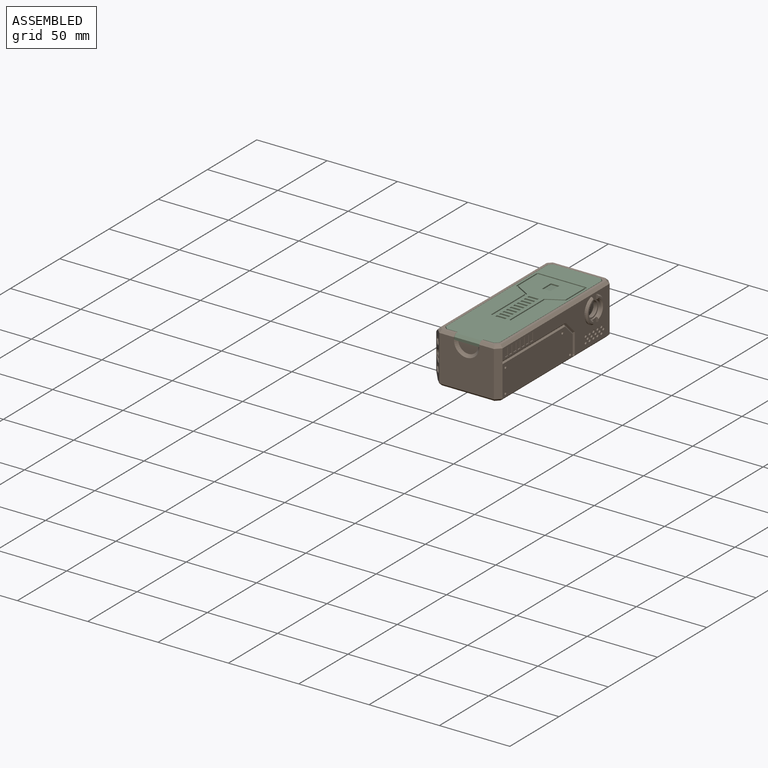
[diagram: assembled view]
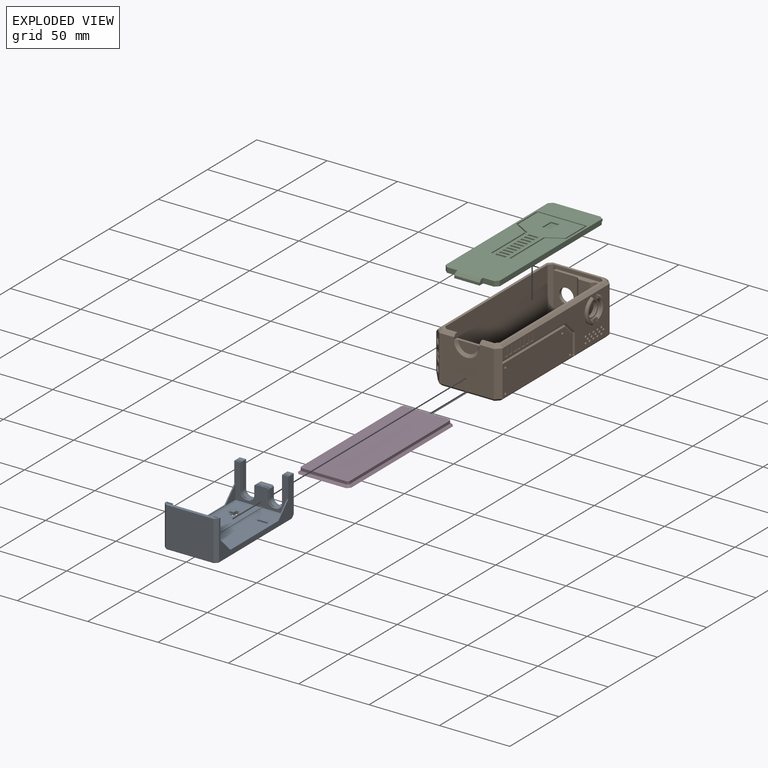
[diagram: exploded view]
GUIDED TOUR — MATED ASSEMBLY (Onshape document 57d64d65164b3f10c1694806, AutoMate assembly 57d64d65164b3f10c1694806_f995a6d2c06ce3dc14281dad_86aa35de4c8ce08f4fe0537d_default)

This assembly has 4 components, labeled P0..P3 below (a component is one placed occurrence of a part; the same part can appear more than once), held together by 3 mates. A mate is a constraint between two components; its type names the relative motion it leaves free:
  FASTENED — locks the two components together rigidly (no relative motion).
Axis/direction vectors are unit vectors and 'through' points are millimeter coordinates, both in the assembly's world frame.

MATES
  1. FASTENED "Fastened 1": P2 <-> P1, direction (0.000, 0.000, -1.000) through (-46.46, 43.61, 37.74) mm
  2. FASTENED "Fastened 2": P3 <-> P1, direction (0.000, 1.000, 0.000) through (-46.46, 39.76, 6.89) mm
  3. FASTENED "Fastened 3": P0 <-> P1, direction (0.000, -1.000, 0.000) through (-46.46, -66.64, 8.89) mm

ASSEMBLY ORDER
  1. P1 — the base component [order heuristic]
  2. P3 — core [order heuristic]
  3. P0 [order verified]
  4. P2 [order verified]
Order-tag legend:
  [order verified] — this step's position reverses a verified removal order: the component was checked to insert without passing through the ones already placed.
  [order heuristic] — the first 2 components form the assembly's core: parts whose collision-free extraction could not be verified, listed in mate-graph order.

Of the 4 components, 1 carries the full construction recipe — the FeatureScript program that regenerates the part's solid from scratch; the rest are supplied as boundary geometry only.
Each toured component is shown spotlighted twice — in the assembled view, then in the exploded view, where a leader line traces a displaced component back to its assembled socket (saturated green if recipe-attached, orange if geometry-only; every other component desaturated gray) — followed by its recipe or geometry summary and the mates that hold it.
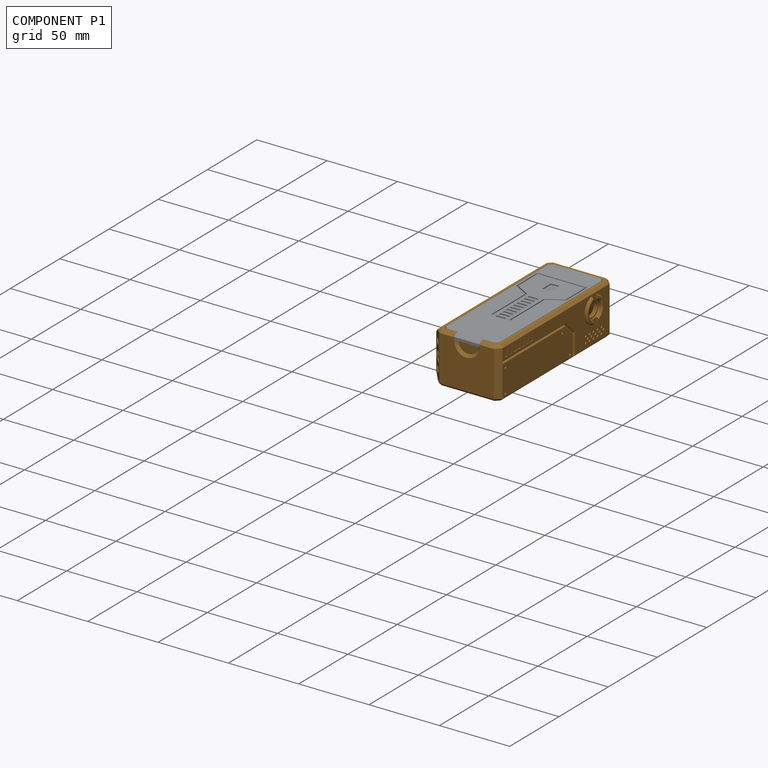
[diagram: component P1 — assembled]
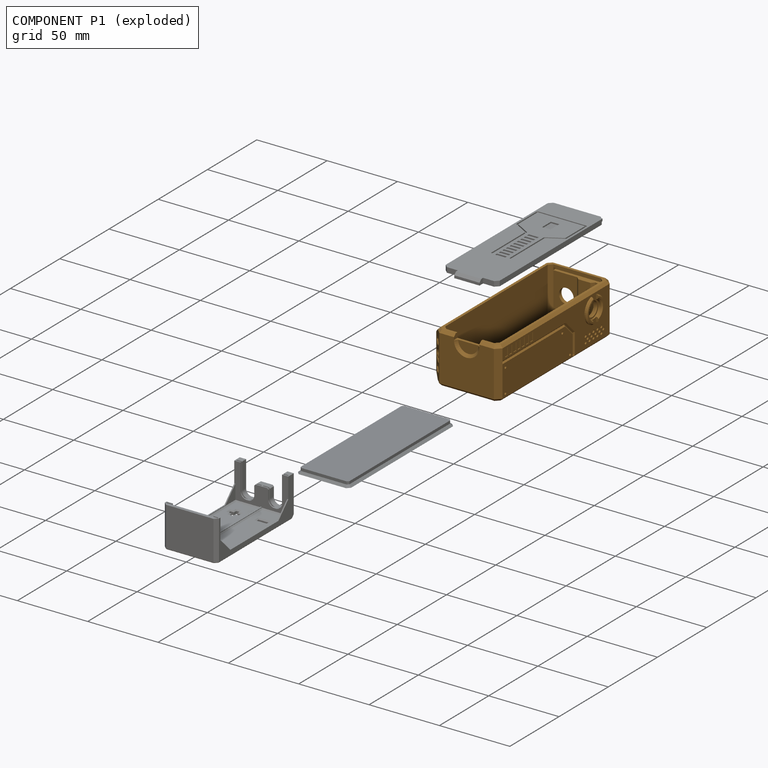
[diagram: component P1 — exploded]
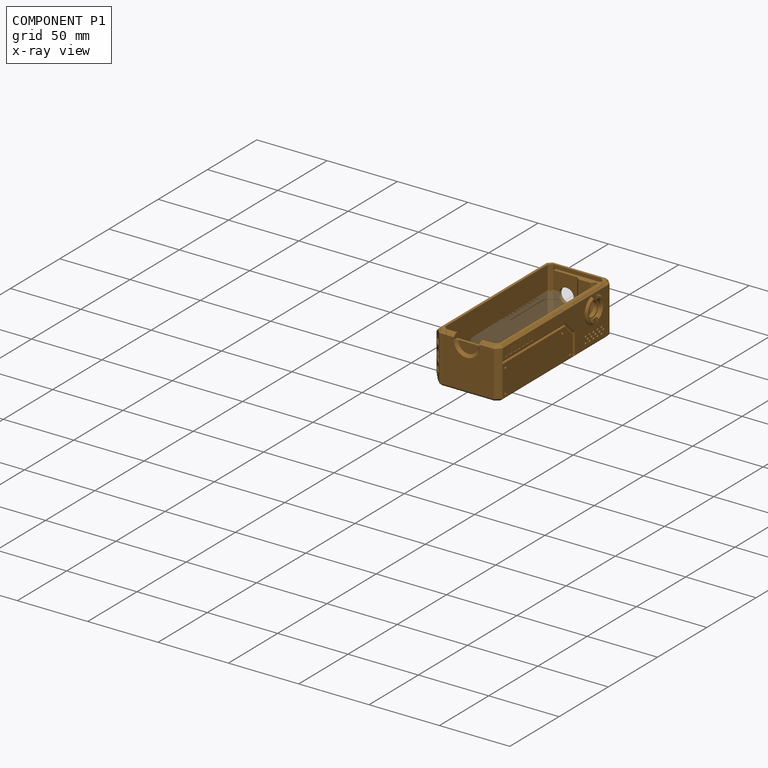
[diagram: component P1 — x-ray view]
COMPONENT P1 — geometry summary (no construction recipe available for this part):
  bounding box: 116.2 x 51.6 x 36.2 mm
  B-rep topology: 1 solid, 395 faces, 1838 edges
  volume: 46922 mm^3 (22% of its bounding box)
Held by: FASTENED mate "Fastened 1" to P2; FASTENED mate "Fastened 2" to P3; FASTENED mate "Fastened 3" to P0.
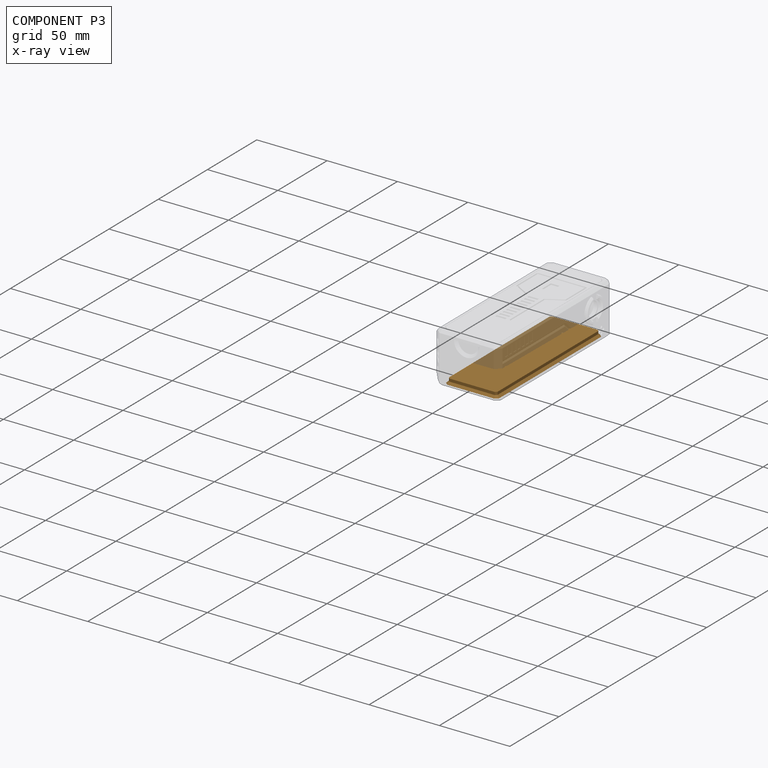
[diagram: component P3 — x-ray view]
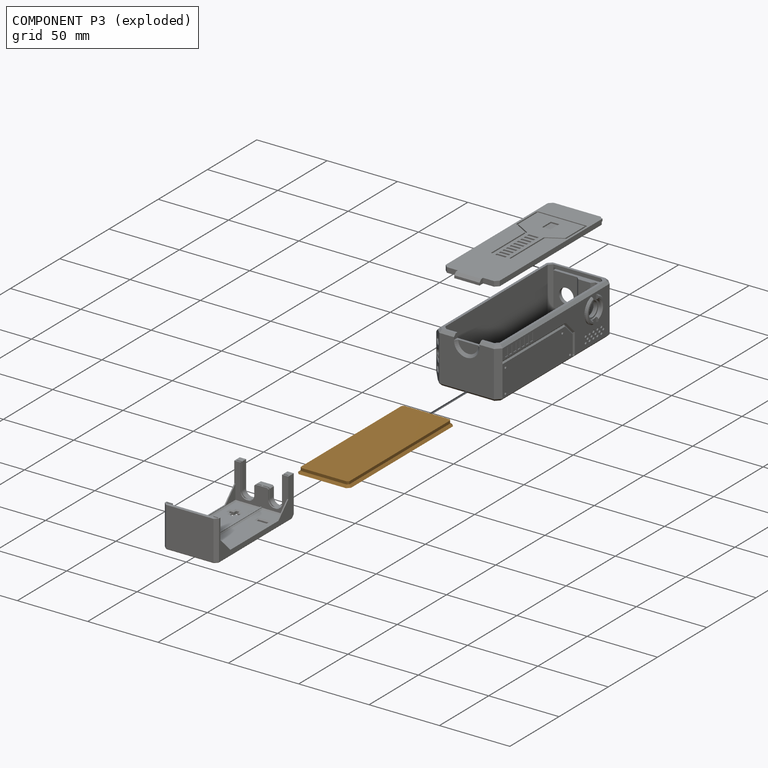
[diagram: component P3 — exploded]
COMPONENT P3 — geometry summary (no construction recipe available for this part):
  bounding box: 107.8 x 37.8 x 3.6 mm
  B-rep topology: 1 solid, 18 faces, 80 edges
  volume: 13377 mm^3 (91% of its bounding box)
  symmetry: 2-fold rotationally symmetric about the z axis; mirror-symmetric across its x mid-plane, y mid-plane
Held by: FASTENED mate "Fastened 2" to P1.
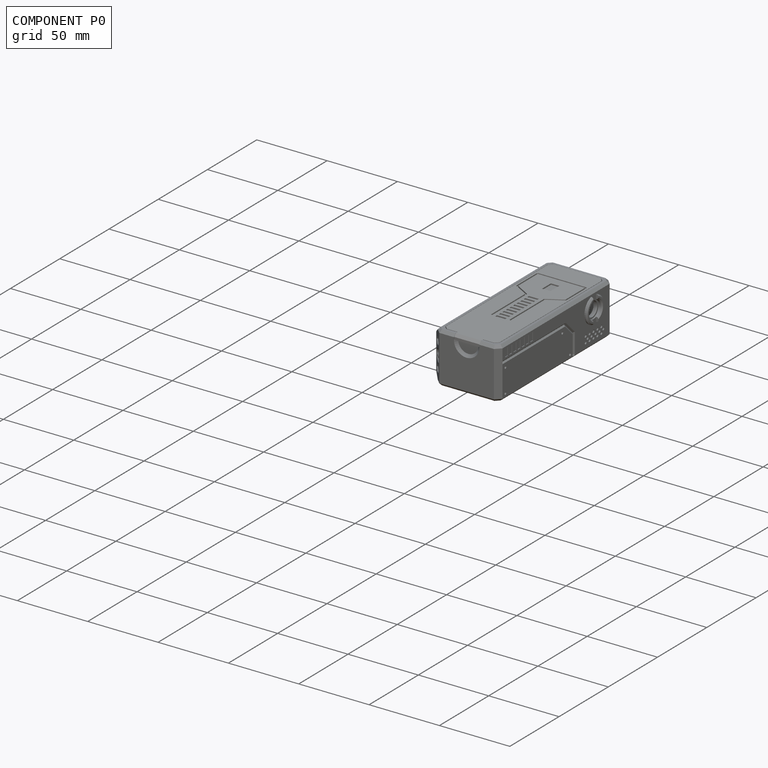
[diagram: component P0 — assembled]
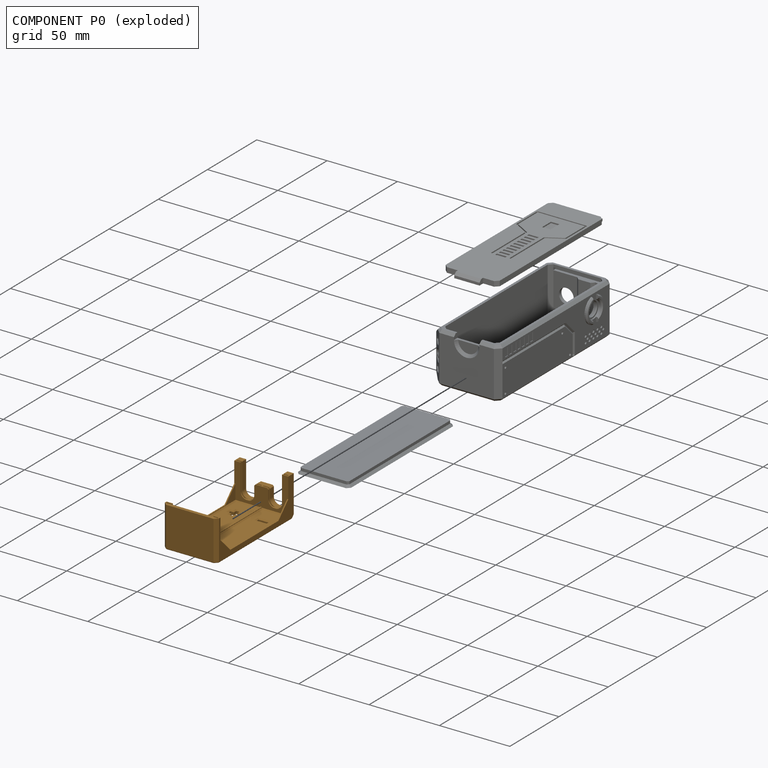
[diagram: component P0 — exploded]
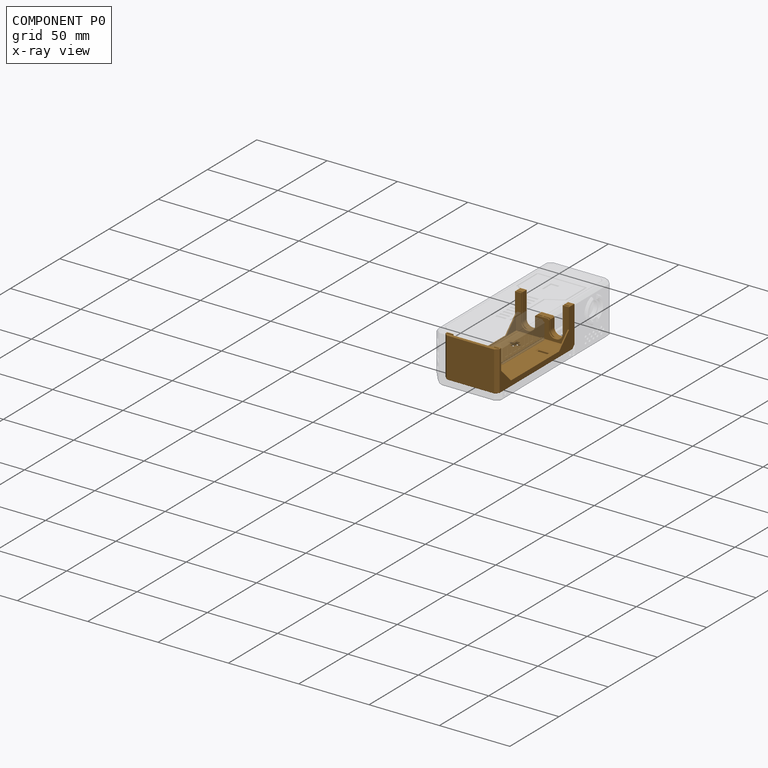
[diagram: component P0 — x-ray view]
COMPONENT P0 — geometry summary (no construction recipe available for this part):
  bounding box: 78.3 x 38.4 x 28.6 mm
  B-rep topology: 1 solid, 186 faces, 1022 edges
  volume: 13199 mm^3 (15% of its bounding box)
Held by: FASTENED mate "Fastened 3" to P1.
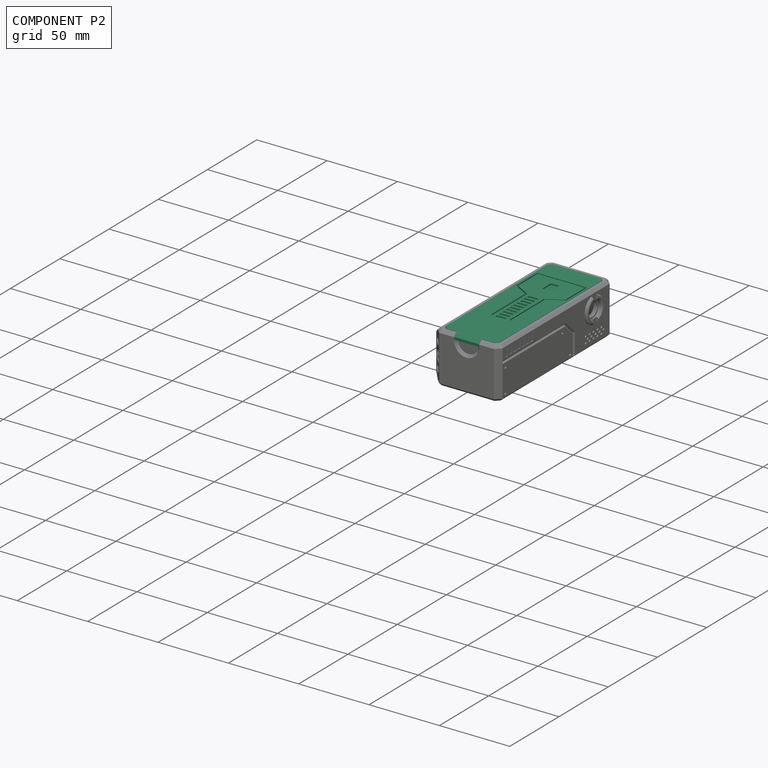
[diagram: component P2 — assembled]
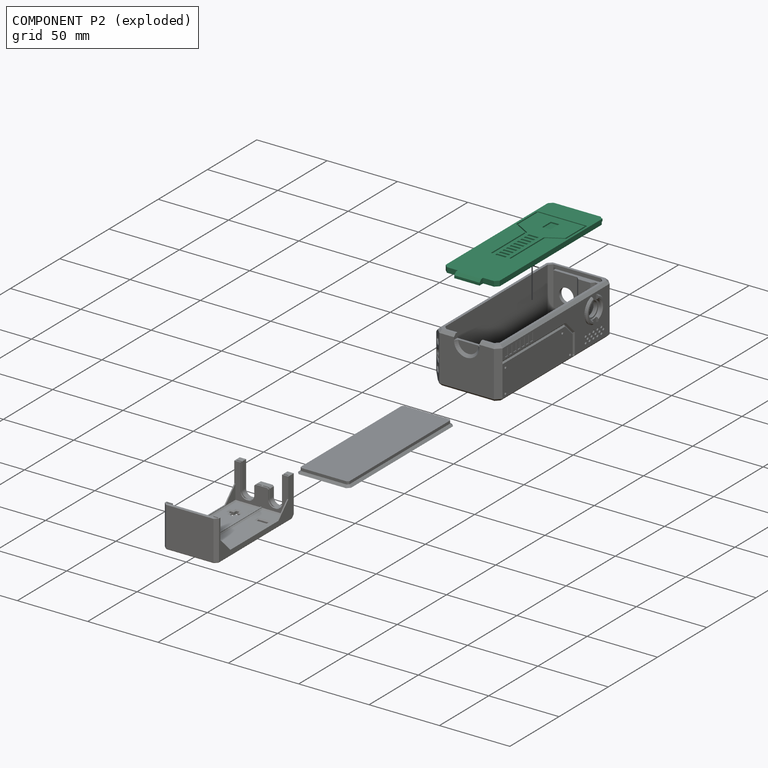
[diagram: component P2 — exploded]
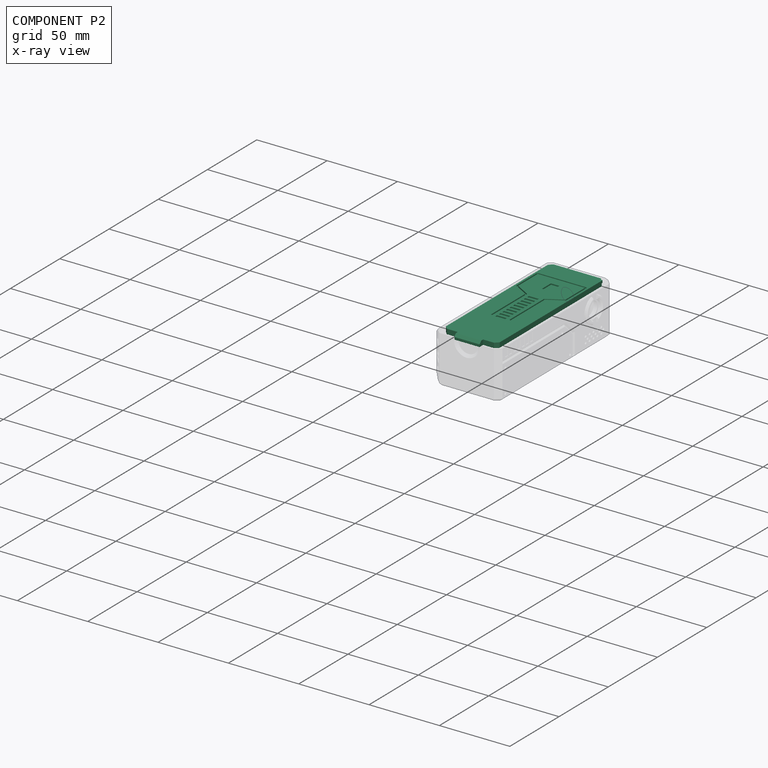
[diagram: component P2 — x-ray view]
COMPONENT P2 — recipe-attached (CADFS 00241045, mesh-verified: the recipe's output STEP matches this component's geometry to below the mesh-comparison resolution (tessellation chordal tolerance ~0.18 mm)).
Held by: FASTENED mate "Fastened 1" to P1.
Construction recipe (FeatureScript — the CAD program that rebuilds this solid; sketch coordinates are in the units given by the * unit suffixes, e.g. mm):

FeatureScript 1540;
import(path : "onshape/std/geometry.fs", version : "1540.0");
import(path : "onshape/std/common.fs", version : "1540.0");
const mm = millimeter;
const VERTEX = EntityType.VERTEX;
const EDGE = EntityType.EDGE;
const FACE = EntityType.FACE;
const BODY = EntityType.BODY;
function v(x, y){return vector(x, y);}
function OD(order){return orderDisambiguation(order);}
function OSD(set){return originalSetDisambiguation(set);}
function TD(topology){return topologyDisambiguation(topology);}
function TDD(query){return trueDependencyDisambiguation(query);}
function sQuery(a, b, c) {return sketchEntityQuery(a, b, c);}

annotation { "Feature Type Name" : "Feature", "Feature Type Description" : "" }
export const myFeature = defineFeature(function(context is Context, id is Id, definition is map)
    precondition{}
    {
        {
            assignVariable(context, id + "F0", {"name" : "O", "anyValue" : 3.6});
        }
        {
            var Q0;
            Q0=qCreatedBy(makeId("Top.planeOp"),FACE);
            var sketch = newSketch(context, id + "F1", { "sketchPlane" : qUnion([Q0])});
            skLineSegment(sketch, "E0.bottom", {"start": v(19.17, 54.18) * mm, "end": v(-19.18, 54.18) * mm});
            skLineSegment(sketch, "E0.top", {"start": v(19.18, -54.18) * mm, "end": v(-19.17, -54.18) * mm});
            skLineSegment(sketch, "E0.left", {"start": v(19.17, 54.18) * mm, "end": v(19.18, -54.18) * mm});
            skLineSegment(sketch, "E0.right", {"start": v(-19.18, 54.18) * mm, "end": v(-19.17, -54.18) * mm});
            skPoint(sketch, "E0.middle", {"position": v(0, 0) * mm});
            skSolve(sketch);
        }
        {
            var Q0;
            Q0=makeQuery(id+"F1.imprint","IMPRINT",FACE,{"disambiguationData":[TD([[makeQuery(id+"F1.imprint","IMPRINT",EDGE,{"derivedFrom":sQuery(id+"F1.wireOp",EDGE,"E0.bottom")}),1.0]])]});
            extrude(context, id + "F2", {"entities" : qUnion([Q0]), "depth" : (getVariable(context, 'O')) * mm});
        }
        {
            var Q0;
            Q0=makeQuery(id+"F2.opExtrude","SWEPT_EDGE",EDGE,{"disambiguationData":[OSD([sQuery(id+"F1.wireOp",EDGE,"E0.top"),sQuery(id+"F1.wireOp",EDGE,"E0.left")])]});
            var Q1;
            Q1=makeQuery(id+"F2.opExtrude","SWEPT_EDGE",EDGE,{"disambiguationData":[OSD([sQuery(id+"F1.wireOp",EDGE,"E0.top"),sQuery(id+"F1.wireOp",EDGE,"E0.right")])]});
            var Q2;
            Q2=makeQuery(id+"F2.opExtrude","SWEPT_EDGE",EDGE,{"disambiguationData":[OSD([sQuery(id+"F1.wireOp",EDGE,"E0.bottom"),sQuery(id+"F1.wireOp",EDGE,"E0.right")])]});
            var Q3;
            Q3=makeQuery(id+"F2.opExtrude","SWEPT_EDGE",EDGE,{"disambiguationData":[OSD([sQuery(id+"F1.wireOp",EDGE,"E0.bottom"),sQuery(id+"F1.wireOp",EDGE,"E0.left")])]});
            chamfer(context, id + "F3", {"entities" : qUnion([Q0, Q1, Q2, Q3]), "width" : (getVariable(context, 'O') * 0.67) * mm, "tangentPropagation" : true});
        }
        {
            var Q0;
            Q0=makeQuery(id+"F2.opExtrude","SWEPT_FACE",FACE,{"disambiguationData":[OSD([sQuery(id+"F1.wireOp",EDGE,"E0.bottom")])]});
            var sketch = newSketch(context, id + "F4", { "sketchPlane" : qUnion([Q0])});
            skLineSegment(sketch, "E1", {"start": v(-16.78, 1.8) * mm, "end": v(16.78, 1.8) * mm});
            skSolve(sketch);
        }
        {
            var Q0;
            {var subQ0=sQuery(id+"F4.wireOp",EDGE,"E1");Q0=makeQuery(id+"F4.imprint","IMPRINT",FACE,{"disambiguationData":[TD([[makeQuery(id+"F4.imprint","IMPRINT",EDGE,{"derivedFrom":subQ0}),-1.0]])]});}
            extrude(context, id + "F5", {"entities" : qUnion([Q0]), "operationType" : NewBodyOperationType.ADD, "depth" : (getVariable(context, 'O') / 2) * mm});
        }
        {
            var Q0;
            Q0=makeQuery(id+"F5.opExtrude","CAP_EDGE",EDGE,{"disambiguationData":[OSD([sQuery(id+"F4.wireOp",EDGE,"E1")])],"isStart":false});
            fillet(context, id + "F6", {"entities" : qUnion([Q0]), "radius" : .25 * mm, "tangentPropagation" : true, "allowEdgeOverflow" : false});
        }
        {
            var Q0;
            Q0=makeQuery(id+"F2.opExtrude","SWEPT_FACE",FACE,{"disambiguationData":[OSD([sQuery(id+"F1.wireOp",EDGE,"E0.top")])]});
            var sketch = newSketch(context, id + "F7", { "sketchPlane" : qUnion([Q0])});
            skLineSegment(sketch, "E2.bottom", {"start": v(9, 0) * mm, "end": v(-9, 0) * mm});
            skLineSegment(sketch, "E2.top", {"start": v(9, 3.6) * mm, "end": v(-9, 3.6) * mm});
            skLineSegment(sketch, "E2.left", {"start": v(9, 0) * mm, "end": v(9, 3.6) * mm});
            skLineSegment(sketch, "E2.right", {"start": v(-9, 0) * mm, "end": v(-9, 3.6) * mm});
            skPoint(sketch, "E2.middle", {"position": v(0, 1.8) * mm});
            skPoint(sketch, "E2.middle.positionSnap0", {"position": v(-16.78, 1.8) * mm});
            skPoint(sketch, "E2.centerSnap0", {"position": v(-16.78, 1.8) * mm});
            skSolve(sketch);
        }
        {
            var Q0;
            Q0=makeQuery(id+"F7.imprint","IMPRINT",FACE,{"disambiguationData":[TD([[makeQuery(id+"F7.imprint","IMPRINT",EDGE,{"derivedFrom":sQuery(id+"F7.wireOp",EDGE,"E2.bottom")}),-1.0]])]});
            extrude(context, id + "F8", {"entities" : qUnion([Q0]), "operationType" : NewBodyOperationType.ADD, "depth" : (getVariable(context, 'O')) * mm});
        }
        {
            var Q0;
            Q0=makeQuery(id+"F8.opExtrude","CAP_EDGE",EDGE,{"disambiguationData":[OSD([sQuery(id+"F7.wireOp",EDGE,"E2.top")])],"isStart":false});
            chamfer(context, id + "F9", {"entities" : qUnion([Q0]), "width" : (getVariable(context, 'O') / 2) * mm, "tangentPropagation" : true});
        }
        {
            var Q0;
            Q0=makeQuery(id+"F8.boolean.opBoolean","MERGE",FACE,{"derivedFrom":[makeQuery(id+"F2.opExtrude","CAP_FACE",FACE,{"disambiguationData":[OSD([sQuery(id+"F1.wireOp",EDGE,"E0.bottom"),sQuery(id+"F1.wireOp",EDGE,"E0.top"),sQuery(id+"F1.wireOp",EDGE,"E0.left"),sQuery(id+"F1.wireOp",EDGE,"E0.right")])],"isStart":false}),makeQuery(id+"F8.opExtrude","SWEPT_FACE",FACE,{"disambiguationData":[OSD([sQuery(id+"F7.wireOp",EDGE,"E2.top")])]})]});
            var sketch = newSketch(context, id + "F10", { "sketchPlane" : qUnion([Q0])});
            skLineSegment(sketch, "E3", {"start": v(-16.78, 38.17) * mm, "end": v(16.78, 38.18) * mm});
            skLineSegment(sketch, "E4", {"start": v(16.78, 38.18) * mm, "end": v(16.78, 18.18) * mm});
            skLineSegment(sketch, "E5", {"start": v(16.78, 18.18) * mm, "end": v(6, 11.95) * mm});
            skLineSegment(sketch, "E6", {"start": v(6, 11.95) * mm, "end": v(6, -23.05) * mm});
            skLineSegment(sketch, "E7", {"start": v(6, -23.05) * mm, "end": v(19.18, -30.65) * mm});
            skLineSegment(sketch, "E8", {"start": v(-16.78, 38.17) * mm, "end": v(-16.78, 18.18) * mm});
            skLineSegment(sketch, "E9", {"start": v(-16.78, 18.18) * mm, "end": v(-6, 11.95) * mm});
            skLineSegment(sketch, "E10", {"start": v(-6, 11.95) * mm, "end": v(-6, -23.05) * mm});
            skLineSegment(sketch, "E11", {"start": v(-6, -23.05) * mm, "end": v(-19.17, -30.65) * mm});
            skArc(sketch, "E12.0.startCap", {"start": v(-7, 11.95) * mm, "mid": v(-6, 12.95) * mm, "end": v(-5, 11.95) * mm});
            skArc(sketch, "E12.0.endCap", {"start": v(-5, -23.05) * mm, "mid": v(-6, -24.05) * mm, "end": v(-7, -23.05) * mm});
            skLineSegment(sketch, "E12.0.left", {"start": v(-5, 11.95) * mm, "end": v(-5, -23.05) * mm});
            skLineSegment(sketch, "E12.0.right", {"start": v(-7, 11.95) * mm, "end": v(-7, -23.05) * mm});
            skArc(sketch, "E12.1.startCap", {"start": v(-17.28, 17.3) * mm, "mid": v(-17.64, 18.68) * mm, "end": v(-16.28, 19.04) * mm});
            skArc(sketch, "E12.1.endCap", {"start": v(-5.5, 12.82) * mm, "mid": v(-5.13, 11.45) * mm, "end": v(-6.5, 11.09) * mm});
            skLineSegment(sketch, "E12.1.left", {"start": v(-16.28, 19.04) * mm, "end": v(-5.5, 12.82) * mm});
            skLineSegment(sketch, "E12.1.right", {"start": v(-17.28, 17.3) * mm, "end": v(-6.5, 11.09) * mm});
            skArc(sketch, "E12.2.startCap", {"start": v(-17.78, 38.17) * mm, "mid": v(-16.78, 39.18) * mm, "end": v(-15.78, 38.17) * mm});
            skArc(sketch, "E12.2.endCap", {"start": v(-15.78, 18.18) * mm, "mid": v(-16.78, 17.18) * mm, "end": v(-17.78, 18.18) * mm});
            skLineSegment(sketch, "E12.2.left", {"start": v(-15.78, 38.17) * mm, "end": v(-15.78, 18.18) * mm});
            skLineSegment(sketch, "E12.2.right", {"start": v(-17.78, 38.17) * mm, "end": v(-17.78, 18.18) * mm});
            skArc(sketch, "E12.3.startCap", {"start": v(-16.78, 37.17) * mm, "mid": v(-17.78, 38.17) * mm, "end": v(-16.78, 39.18) * mm});
            skArc(sketch, "E12.3.endCap", {"start": v(16.78, 39.18) * mm, "mid": v(17.78, 38.18) * mm, "end": v(16.78, 37.18) * mm});
            skLineSegment(sketch, "E12.3.left", {"start": v(-16.78, 39.18) * mm, "end": v(16.78, 39.18) * mm});
            skLineSegment(sketch, "E12.3.right", {"start": v(-16.78, 37.17) * mm, "end": v(16.78, 37.18) * mm});
            skArc(sketch, "E12.4.startCap", {"start": v(15.78, 38.18) * mm, "mid": v(16.78, 39.18) * mm, "end": v(17.78, 38.18) * mm});
            skArc(sketch, "E12.4.endCap", {"start": v(17.78, 18.18) * mm, "mid": v(16.78, 17.18) * mm, "end": v(15.78, 18.18) * mm});
            skLineSegment(sketch, "E12.4.left", {"start": v(17.78, 38.18) * mm, "end": v(17.78, 18.18) * mm});
            skLineSegment(sketch, "E12.4.right", {"start": v(15.78, 38.18) * mm, "end": v(15.78, 18.18) * mm});
            skArc(sketch, "E12.5.startCap", {"start": v(16.28, 19.04) * mm, "mid": v(17.64, 18.68) * mm, "end": v(17.28, 17.3) * mm});
            skArc(sketch, "E12.5.endCap", {"start": v(6.5, 11.09) * mm, "mid": v(5.13, 11.45) * mm, "end": v(5.5, 12.82) * mm});
            skLineSegment(sketch, "E12.5.left", {"start": v(17.28, 17.3) * mm, "end": v(6.5, 11.09) * mm});
            skLineSegment(sketch, "E12.5.right", {"start": v(16.28, 19.04) * mm, "end": v(5.5, 12.82) * mm});
            skArc(sketch, "E12.6.startCap", {"start": v(5, 11.95) * mm, "mid": v(6, 12.95) * mm, "end": v(7, 11.95) * mm});
            skArc(sketch, "E12.6.endCap", {"start": v(7, -23.05) * mm, "mid": v(6, -24.05) * mm, "end": v(5, -23.05) * mm});
            skLineSegment(sketch, "E12.6.left", {"start": v(7, 11.95) * mm, "end": v(7, -23.05) * mm});
            skLineSegment(sketch, "E12.6.right", {"start": v(5, 11.95) * mm, "end": v(5, -23.05) * mm});
            skArc(sketch, "E13.0.startCap", {"start": v(-6.5, -22.18) * mm, "mid": v(-5.13, -22.55) * mm, "end": v(-5.5, -23.91) * mm});
            skArc(sketch, "E13.0.endCap", {"start": v(-18.67, -31.52) * mm, "mid": v(-20.04, -31.15) * mm, "end": v(-19.67, -29.79) * mm});
            skLineSegment(sketch, "E13.0.left", {"start": v(-5.5, -23.91) * mm, "end": v(-18.67, -31.52) * mm});
            skLineSegment(sketch, "E13.0.right", {"start": v(-6.5, -22.18) * mm, "end": v(-19.67, -29.79) * mm});
            skArc(sketch, "E13.1.startCap", {"start": v(5.5, -23.91) * mm, "mid": v(5.13, -22.55) * mm, "end": v(6.5, -22.18) * mm});
            skArc(sketch, "E13.1.endCap", {"start": v(19.67, -29.79) * mm, "mid": v(20.04, -31.15) * mm, "end": v(18.67, -31.52) * mm});
            skLineSegment(sketch, "E13.1.left", {"start": v(6.5, -22.18) * mm, "end": v(19.67, -29.79) * mm});
            skLineSegment(sketch, "E13.1.right", {"start": v(5.5, -23.91) * mm, "end": v(18.68, -31.52) * mm});
            skLineSegment(sketch, "E14.bottom", {"start": v(3, 22.83) * mm, "end": v(-3, 22.83) * mm});
            skLineSegment(sketch, "E14.top", {"start": v(3, 31.83) * mm, "end": v(-3, 31.83) * mm});
            skLineSegment(sketch, "E14.left", {"start": v(3, 22.83) * mm, "end": v(3, 31.83) * mm});
            skLineSegment(sketch, "E14.right", {"start": v(-3, 22.83) * mm, "end": v(-3, 31.83) * mm});
            skPoint(sketch, "E14.middle", {"position": v(0, 27.33) * mm});
            skLineSegment(sketch, "E15.bottom", {"start": v(3.5, -23.95) * mm, "end": v(-3.5, -23.95) * mm});
            skLineSegment(sketch, "E15.top", {"start": v(3.5, -22.15) * mm, "end": v(-3.5, -22.15) * mm});
            skLineSegment(sketch, "E15.left", {"start": v(3.5, -23.95) * mm, "end": v(3.5, -22.15) * mm});
            skLineSegment(sketch, "E15.right", {"start": v(-3.5, -23.95) * mm, "end": v(-3.5, -22.15) * mm});
            skPoint(sketch, "E15.middle", {"position": v(0, -23.05) * mm});
            skLineSegment(sketch, "E16.0.1.0", {"start": v(3.5, -18.55) * mm, "end": v(-3.5, -18.55) * mm});
            skLineSegment(sketch, "E16.0.1.1", {"start": v(-3.5, -20.35) * mm, "end": v(-3.5, -18.55) * mm});
            skLineSegment(sketch, "E16.0.1.2", {"start": v(3.5, -20.35) * mm, "end": v(-3.5, -20.35) * mm});
            skLineSegment(sketch, "E16.0.1.3", {"start": v(3.5, -20.35) * mm, "end": v(3.5, -18.55) * mm});
            skLineSegment(sketch, "E16.0.2.0", {"start": v(3.5, -14.95) * mm, "end": v(-3.5, -14.95) * mm});
            skLineSegment(sketch, "E16.0.2.1", {"start": v(-3.5, -16.75) * mm, "end": v(-3.5, -14.95) * mm});
            skLineSegment(sketch, "E16.0.2.2", {"start": v(3.5, -16.75) * mm, "end": v(-3.5, -16.75) * mm});
            skLineSegment(sketch, "E16.0.2.3", {"start": v(3.5, -16.75) * mm, "end": v(3.5, -14.95) * mm});
            skLineSegment(sketch, "E16.0.3.0", {"start": v(3.5, -11.35) * mm, "end": v(-3.5, -11.35) * mm});
            skLineSegment(sketch, "E16.0.3.1", {"start": v(-3.5, -13.15) * mm, "end": v(-3.5, -11.35) * mm});
            skLineSegment(sketch, "E16.0.3.2", {"start": v(3.5, -13.15) * mm, "end": v(-3.5, -13.15) * mm});
            skLineSegment(sketch, "E16.0.3.3", {"start": v(3.5, -13.15) * mm, "end": v(3.5, -11.35) * mm});
            skLineSegment(sketch, "E16.0.4.0", {"start": v(3.5, -7.75) * mm, "end": v(-3.5, -7.75) * mm});
            skLineSegment(sketch, "E16.0.4.1", {"start": v(-3.5, -9.55) * mm, "end": v(-3.5, -7.75) * mm});
            skLineSegment(sketch, "E16.0.4.2", {"start": v(3.5, -9.55) * mm, "end": v(-3.5, -9.55) * mm});
            skLineSegment(sketch, "E16.0.4.3", {"start": v(3.5, -9.55) * mm, "end": v(3.5, -7.75) * mm});
            skLineSegment(sketch, "E16.0.5.0", {"start": v(3.5, -4.15) * mm, "end": v(-3.5, -4.15) * mm});
            skLineSegment(sketch, "E16.0.5.1", {"start": v(-3.5, -5.95) * mm, "end": v(-3.5, -4.15) * mm});
            skLineSegment(sketch, "E16.0.5.2", {"start": v(3.5, -5.95) * mm, "end": v(-3.5, -5.95) * mm});
            skLineSegment(sketch, "E16.0.5.3", {"start": v(3.5, -5.95) * mm, "end": v(3.5, -4.15) * mm});
            skLineSegment(sketch, "E16.0.6.0", {"start": v(3.5, -0.55) * mm, "end": v(-3.5, -0.55) * mm});
            skLineSegment(sketch, "E16.0.6.1", {"start": v(-3.5, -2.35) * mm, "end": v(-3.5, -0.55) * mm});
            skLineSegment(sketch, "E16.0.6.2", {"start": v(3.5, -2.35) * mm, "end": v(-3.5, -2.35) * mm});
            skLineSegment(sketch, "E16.0.6.3", {"start": v(3.5, -2.35) * mm, "end": v(3.5, -0.55) * mm});
            skLineSegment(sketch, "E16.0.7.0", {"start": v(3.5, 3.05) * mm, "end": v(-3.5, 3.05) * mm});
            skLineSegment(sketch, "E16.0.7.1", {"start": v(-3.5, 1.25) * mm, "end": v(-3.5, 3.05) * mm});
            skLineSegment(sketch, "E16.0.7.2", {"start": v(3.5, 1.25) * mm, "end": v(-3.5, 1.25) * mm});
            skLineSegment(sketch, "E16.0.7.3", {"start": v(3.5, 1.25) * mm, "end": v(3.5, 3.05) * mm});
            skLineSegment(sketch, "E16.0.8.0", {"start": v(3.5, 6.65) * mm, "end": v(-3.5, 6.65) * mm});
            skLineSegment(sketch, "E16.0.8.1", {"start": v(-3.5, 4.85) * mm, "end": v(-3.5, 6.65) * mm});
            skLineSegment(sketch, "E16.0.8.2", {"start": v(3.5, 4.85) * mm, "end": v(-3.5, 4.85) * mm});
            skLineSegment(sketch, "E16.0.8.3", {"start": v(3.5, 4.85) * mm, "end": v(3.5, 6.65) * mm});
            skLineSegment(sketch, "E16.0.9.0", {"start": v(3.5, 10.25) * mm, "end": v(-3.5, 10.25) * mm});
            skLineSegment(sketch, "E16.0.9.1", {"start": v(-3.5, 8.45) * mm, "end": v(-3.5, 10.25) * mm});
            skLineSegment(sketch, "E16.0.9.2", {"start": v(3.5, 8.45) * mm, "end": v(-3.5, 8.45) * mm});
            skLineSegment(sketch, "E16.0.9.3", {"start": v(3.5, 8.45) * mm, "end": v(3.5, 10.25) * mm});
            skLineSegment(sketch, "E16.direction1", {"start": v(-3.5, -22.15) * mm, "end": v(21.5, -22.15) * mm, "construction": true});
            skLineSegment(sketch, "E16.direction2", {"start": v(-3.5, -22.15) * mm, "end": v(-3.5, -18.55) * mm, "construction": true});
            skSolve(sketch);
        }
        {
            var Q0;
            Q0=makeQuery(id+"F10.imprint","IMPRINT",FACE,{"disambiguationData":[TD([[makeQuery(id+"F10.imprint","IMPRINT",EDGE,{"derivedFrom":sQuery(id+"F10.wireOp",EDGE,"E15.bottom")}),-1.0]])]});
            var Q1;
            Q1=makeQuery(id+"F10.imprint","IMPRINT",FACE,{"disambiguationData":[TD([[makeQuery(id+"F10.imprint","IMPRINT",EDGE,{"derivedFrom":sQuery(id+"F10.wireOp",EDGE,"E16.0.1.0")}),1.0]])]});
            var Q2;
            Q2=makeQuery(id+"F10.imprint","IMPRINT",FACE,{"disambiguationData":[TD([[makeQuery(id+"F10.imprint","IMPRINT",EDGE,{"derivedFrom":sQuery(id+"F10.wireOp",EDGE,"E16.0.2.0")}),1.0]])]});
            var Q3;
            Q3=makeQuery(id+"F10.imprint","IMPRINT",FACE,{"disambiguationData":[TD([[makeQuery(id+"F10.imprint","IMPRINT",EDGE,{"derivedFrom":sQuery(id+"F10.wireOp",EDGE,"E16.0.3.0")}),1.0]])]});
            var Q4;
            Q4=makeQuery(id+"F10.imprint","IMPRINT",FACE,{"disambiguationData":[TD([[makeQuery(id+"F10.imprint","IMPRINT",EDGE,{"derivedFrom":sQuery(id+"F10.wireOp",EDGE,"E16.0.4.0")}),1.0]])]});
            var Q5;
            Q5=makeQuery(id+"F10.imprint","IMPRINT",FACE,{"disambiguationData":[TD([[makeQuery(id+"F10.imprint","IMPRINT",EDGE,{"derivedFrom":sQuery(id+"F10.wireOp",EDGE,"E16.0.5.0")}),1.0]])]});
            var Q6;
            Q6=makeQuery(id+"F10.imprint","IMPRINT",FACE,{"disambiguationData":[TD([[makeQuery(id+"F10.imprint","IMPRINT",EDGE,{"derivedFrom":sQuery(id+"F10.wireOp",EDGE,"E16.0.6.0")}),1.0]])]});
            var Q7;
            Q7=makeQuery(id+"F10.imprint","IMPRINT",FACE,{"disambiguationData":[TD([[makeQuery(id+"F10.imprint","IMPRINT",EDGE,{"derivedFrom":sQuery(id+"F10.wireOp",EDGE,"E16.0.7.0")}),1.0]])]});
            var Q8;
            Q8=makeQuery(id+"F10.imprint","IMPRINT",FACE,{"disambiguationData":[TD([[makeQuery(id+"F10.imprint","IMPRINT",EDGE,{"derivedFrom":sQuery(id+"F10.wireOp",EDGE,"E16.0.8.0")}),1.0]])]});
            var Q9;
            Q9=makeQuery(id+"F10.imprint","IMPRINT",FACE,{"disambiguationData":[TD([[makeQuery(id+"F10.imprint","IMPRINT",EDGE,{"derivedFrom":sQuery(id+"F10.wireOp",EDGE,"E16.0.9.0")}),1.0]])]});
            var Q10;
            Q10=makeQuery(id+"F10.imprint","IMPRINT",FACE,{"disambiguationData":[TD([[makeQuery(id+"F10.imprint","IMPRINT",EDGE,{"derivedFrom":sQuery(id+"F10.wireOp",EDGE,"E14.bottom")}),-1.0]])]});
            var Q11;
            {var subQ1=sQuery(id+"F10.wireOp",EDGE,"E12.1.endCap");var subQ5=sQuery(id+"F10.wireOp",EDGE,"E10");var subQ6=makeQuery(id+"F10.imprint","INTERSECT",VERTEX,{"derivedFrom":[subQ5,subQ1]});Q11=makeQuery(id+"F10.imprint","IMPRINT",FACE,{"disambiguationData":[TD([[makeQuery(id+"F10.imprint","IMPRINT",EDGE,{"disambiguationData":[TD([[subQ6,-1.0]])],"derivedFrom":subQ5}),-1.0]])]});}
            var Q12;
            {var subQ5=sQuery(id+"F10.wireOp",EDGE,"E11");var subQ6=sQuery(id+"F10.wireOp",EDGE,"E10");var subQ7=makeQuery(id+"F10.imprint","INTERSECT",VERTEX,{"derivedFrom":[subQ6,subQ5]});Q12=makeQuery(id+"F10.imprint","IMPRINT",FACE,{"disambiguationData":[TD([[makeQuery(id+"F10.imprint","IMPRINT",EDGE,{"disambiguationData":[TD([[subQ7,1.0]])],"derivedFrom":subQ6}),-1.0]])]});}
            var Q13;
            {var subQ5=sQuery(id+"F10.wireOp",EDGE,"E7");var subQ7=sQuery(id+"F10.wireOp",EDGE,"E6");var subQ8=makeQuery(id+"F10.imprint","INTERSECT",VERTEX,{"derivedFrom":[subQ7,subQ5]});Q13=makeQuery(id+"F10.imprint","IMPRINT",FACE,{"disambiguationData":[TD([[makeQuery(id+"F10.imprint","IMPRINT",EDGE,{"disambiguationData":[TD([[subQ8,1.0]])],"derivedFrom":subQ7}),1.0]])]});}
            var Q14;
            {var subQ5=sQuery(id+"F10.wireOp",EDGE,"E12.5.endCap");var subQ7=sQuery(id+"F10.wireOp",EDGE,"E6");var subQ8=makeQuery(id+"F10.imprint","INTERSECT",VERTEX,{"derivedFrom":[subQ7,subQ5]});Q14=makeQuery(id+"F10.imprint","IMPRINT",FACE,{"disambiguationData":[TD([[makeQuery(id+"F10.imprint","IMPRINT",EDGE,{"disambiguationData":[TD([[subQ8,-1.0]])],"derivedFrom":subQ7}),1.0]])]});}
            var Q15;
            {var subQ5=sQuery(id+"F10.wireOp",EDGE,"E10");var subQ6=sQuery(id+"F10.wireOp",EDGE,"E9");var subQ7=makeQuery(id+"F10.imprint","INTERSECT",VERTEX,{"derivedFrom":[subQ6,subQ5]});Q15=makeQuery(id+"F10.imprint","IMPRINT",FACE,{"disambiguationData":[TD([[makeQuery(id+"F10.imprint","IMPRINT",EDGE,{"disambiguationData":[TD([[subQ7,1.0]])],"derivedFrom":subQ6}),-1.0]])]});}
            var Q16;
            {var subQ0=sQuery(id+"F10.wireOp",EDGE,"E12.2.endCap");var subQ7=sQuery(id+"F10.wireOp",EDGE,"E9");var subQ9=makeQuery(id+"F10.imprint","INTERSECT",VERTEX,{"derivedFrom":[subQ7,subQ0]});Q16=makeQuery(id+"F10.imprint","IMPRINT",FACE,{"disambiguationData":[TD([[makeQuery(id+"F10.imprint","IMPRINT",EDGE,{"disambiguationData":[TD([[subQ9,-1.0]])],"derivedFrom":subQ7}),-1.0]])]});}
            var Q17;
            {var subQ3=sQuery(id+"F10.wireOp",EDGE,"E8");var subQ6=sQuery(id+"F10.wireOp",EDGE,"E9");var subQ8=makeQuery(id+"F10.imprint","INTERSECT",VERTEX,{"derivedFrom":[subQ3,subQ6]});Q17=makeQuery(id+"F10.imprint","IMPRINT",FACE,{"disambiguationData":[TD([[makeQuery(id+"F10.imprint","IMPRINT",EDGE,{"disambiguationData":[TD([[subQ8,1.0]])],"derivedFrom":subQ3}),-1.0]])]});}
            var Q18;
            {var subQ7=sQuery(id+"F10.wireOp",EDGE,"E5");var subQ9=sQuery(id+"F10.wireOp",EDGE,"E6");var subQ11=makeQuery(id+"F10.imprint","INTERSECT",VERTEX,{"derivedFrom":[subQ7,subQ9]});Q18=makeQuery(id+"F10.imprint","IMPRINT",FACE,{"disambiguationData":[TD([[makeQuery(id+"F10.imprint","IMPRINT",EDGE,{"disambiguationData":[TD([[subQ11,1.0]])],"derivedFrom":subQ7}),1.0]])]});}
            var Q19;
            {var subQ3=sQuery(id+"F10.wireOp",EDGE,"E5");var subQ6=sQuery(id+"F10.wireOp",EDGE,"E12.4.endCap");var subQ8=makeQuery(id+"F10.imprint","INTERSECT",VERTEX,{"derivedFrom":[subQ3,subQ6]});Q19=makeQuery(id+"F10.imprint","IMPRINT",FACE,{"disambiguationData":[TD([[makeQuery(id+"F10.imprint","IMPRINT",EDGE,{"disambiguationData":[TD([[subQ8,-1.0]])],"derivedFrom":subQ3}),1.0]])]});}
            var Q20;
            {var subQ2=sQuery(id+"F10.wireOp",EDGE,"E4");var subQ6=sQuery(id+"F10.wireOp",EDGE,"E5");var subQ8=makeQuery(id+"F10.imprint","INTERSECT",VERTEX,{"derivedFrom":[subQ2,subQ6]});Q20=makeQuery(id+"F10.imprint","IMPRINT",FACE,{"disambiguationData":[TD([[makeQuery(id+"F10.imprint","IMPRINT",EDGE,{"disambiguationData":[TD([[subQ8,1.0]])],"derivedFrom":subQ2}),1.0]])]});}
            var Q21;
            {var subQ0=sQuery(id+"F10.wireOp",EDGE,"E12.3.endCap");Q21=makeQuery(id+"F10.imprint","IMPRINT",FACE,{"disambiguationData":[TD([[makeQuery(id+"F10.imprint","IMPRINT",EDGE,{"derivedFrom":subQ0}),1.0]])]});}
            var Q22;
            {var subQ5=sQuery(id+"F10.wireOp",EDGE,"E12.2.right");Q22=makeQuery(id+"F10.imprint","IMPRINT",FACE,{"disambiguationData":[TD([[makeQuery(id+"F10.imprint","IMPRINT",EDGE,{"derivedFrom":subQ5}),1.0]])]});}
            var Q23;
            {var subQ4=sQuery(id+"F10.wireOp",EDGE,"E12.2.startCap");Q23=makeQuery(id+"F10.imprint","IMPRINT",FACE,{"disambiguationData":[TD([[makeQuery(id+"F10.imprint","IMPRINT",EDGE,{"derivedFrom":subQ4}),-1.0]])]});}
            var Q24;
            {var subQ4=sQuery(id+"F10.wireOp",EDGE,"E12.3.endCap");Q24=makeQuery(id+"F10.imprint","IMPRINT",FACE,{"disambiguationData":[TD([[makeQuery(id+"F10.imprint","IMPRINT",EDGE,{"derivedFrom":subQ4}),-1.0]])]});}
            var Q25;
            {var subQ0=sQuery(id+"F10.wireOp",EDGE,"E12.2.startCap");Q25=makeQuery(id+"F10.imprint","IMPRINT",FACE,{"disambiguationData":[TD([[makeQuery(id+"F10.imprint","IMPRINT",EDGE,{"derivedFrom":subQ0}),1.0]])]});}
            extrude(context, id + "F11", {"entities" : qUnion([Q0, Q1, Q2, Q3, Q4, Q5, Q6, Q7, Q8, Q9, Q10, Q11, Q12, Q13, Q14, Q15, Q16, Q17, Q18, Q19, Q20, Q21, Q22, Q23, Q24, Q25]), "operationType" : NewBodyOperationType.REMOVE, "oppositeDirection" : true, "depth" : .9 * mm});
        }
    });
PROVENANCE & LICENSES
Assembly (occurrences, transforms, mates, per-part STEP geometry): AutoMate dataset, Zenodo record 7776208, CC0.
Construction recipes: CADFS (HuggingFace VladPyatov/CADFS, CC-BY-4.0, layered over the ABC dataset), FeatureScript reconstruction programs keyed by ABC model id.
Join: ABC meta listings map ABC model id -> Onshape documentId; within a shared document, parts are matched by geometric signature (bounding-box dims + volume at 0.1% relative tolerance, exact B-rep face/solid counts).
Verification: 1 of this assembly's 4 components carries a recipe attachment, and every attachment is mesh-verified: the CADFS STEP and the AutoMate member STEP were compared as meshes in their shared local frame (symmetric sampled-point-to-mesh distance); worst across the 1 attachment: below the mesh-comparison resolution (tessellation chordal tolerance ~0.18 mm) on a 120 mm part.
Renders: orthographic iso camera (az 35 / el 25); the floor grid conveys scale (grid pitch printed in each image; no ruler). In the exploded view each component is displaced by its stored offset vector: the offsets alone carry the explosion direction (mate normal/axis signs are not orientation cues and do not encode it), and separation distances are assigned per mate-chain, not proportionally to assembly-order depth.
